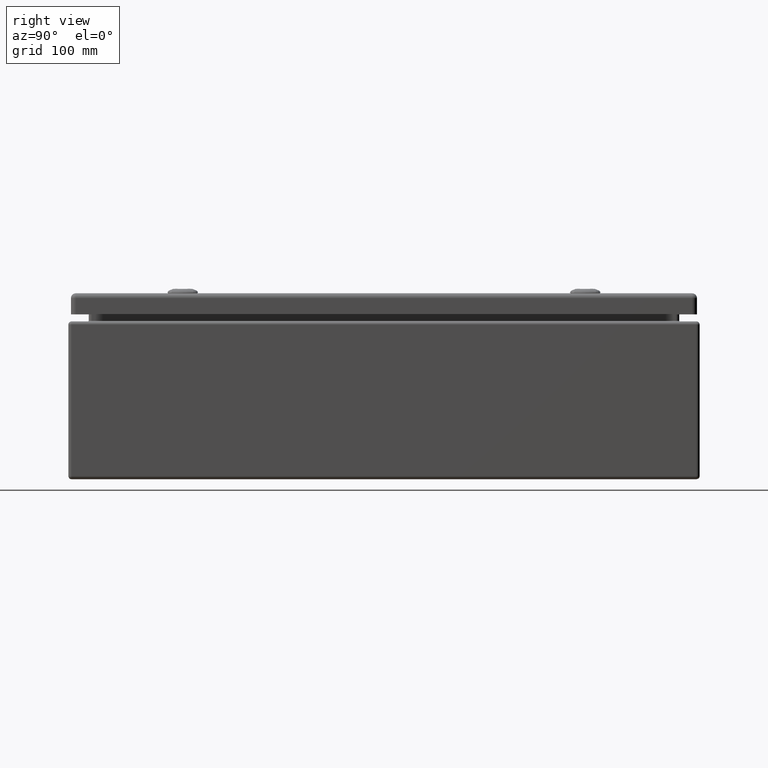
[diagram: clean part render]
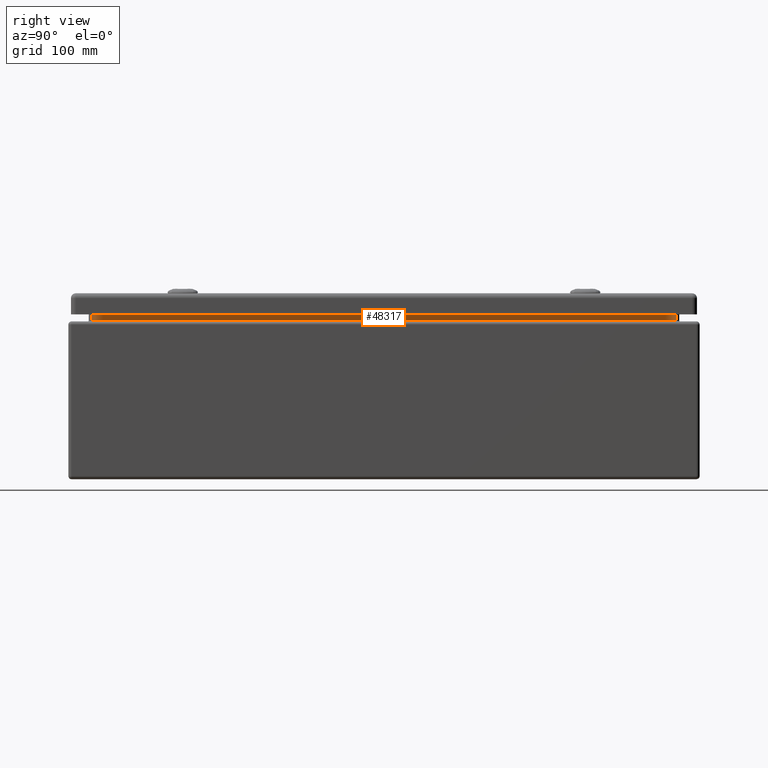
[diagram: same view with one face highlighted and labeled with its STEP entity id]
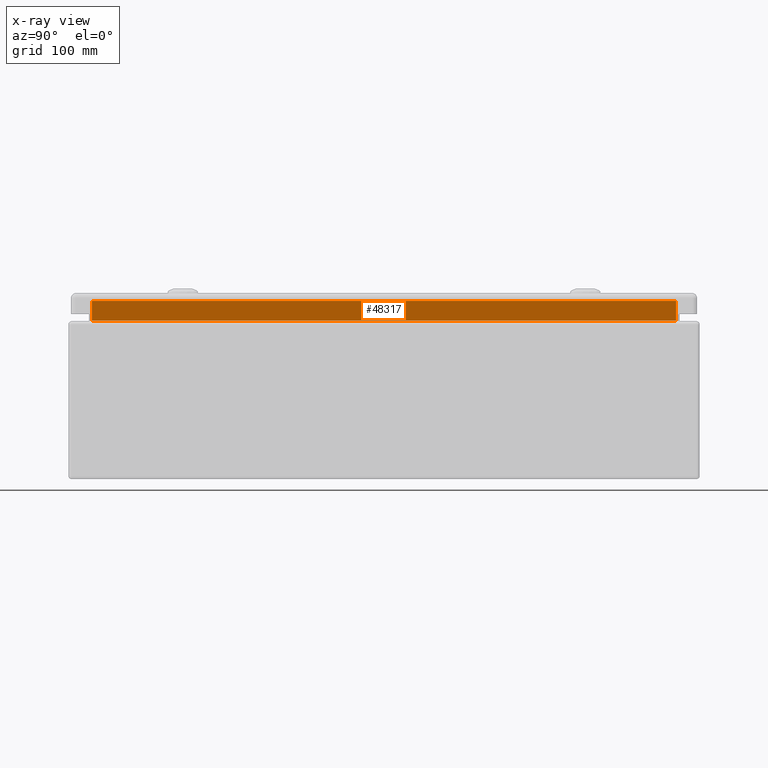
[diagram: x-ray of the same camera — body ghosted, the highlighted face saturated]
A machine part, right view. The second image highlights one B-rep face of the part: STEP entity #48317.
The next image is the same camera in x-ray: the body ghosted, the highlighted face saturated — about 0% of this face is hidden behind the body in this view.
In plain terms, the highlighted planar face has unit normal (-1, -0, -0).
Its self-contained STEP definition (entity closure, byte-faithful):
#4110=LINE('',#69063,#7935);
#4126=LINE('',#69115,#7951);
#4128=LINE('',#69118,#7953);
#4129=LINE('',#69119,#7954);
#7935=VECTOR('',#56617,0.393700787401575);
#7951=VECTOR('',#56673,0.393700787401575);
#7953=VECTOR('',#56677,0.393700787401575);
#7954=VECTOR('',#56678,0.393700787401575);
#12385=FACE_OUTER_BOUND('',#15313,.T.);
#15313=EDGE_LOOP('',(#32498,#32499,#32500,#32501));
#20160=VERTEX_POINT('',#69048);
#20164=VERTEX_POINT('',#69057);
#20166=VERTEX_POINT('',#69066);
#20171=VERTEX_POINT('',#69083);
#24920=EDGE_CURVE('',#20160,#20164,#4110,.T.);
#24949=EDGE_CURVE('',#20166,#20171,#4126,.T.);
#24951=EDGE_CURVE('',#20166,#20164,#4128,.T.);
#24952=EDGE_CURVE('',#20160,#20171,#4129,.T.);
#32498=ORIENTED_EDGE('',*,*,#24949,.F.);
#32499=ORIENTED_EDGE('',*,*,#24951,.T.);
#32500=ORIENTED_EDGE('',*,*,#24920,.F.);
#32501=ORIENTED_EDGE('',*,*,#24952,.T.);
#46902=PLANE('',#52150);
#48317=ADVANCED_FACE('',(#12385),#46902,.F.);
#52150=AXIS2_PLACEMENT_3D('',#69117,#56675,#56676);
#56617=DIRECTION('',(8.81870860163561E-15,-5.39208377136787E-15,-1.));
#56673=DIRECTION('',(-8.81870860163561E-15,-5.39208377136787E-15,1.));
#56675=DIRECTION('center_axis',(-1.,-7.42077912484162E-18,-8.81870860163561E-15));
#56676=DIRECTION('ref_axis',(-8.81870860163561E-15,7.40132151804919E-18,
1.));
#56677=DIRECTION('',(-7.42077912484265E-18,1.,1.17883767982698E-16));
#56678=DIRECTION('',(7.42077912484265E-18,-1.,-1.18313953740284E-16));
#69048=CARTESIAN_POINT('',(5.22385826745549,11.1028582677165,6.77325196889546));
#69057=CARTESIAN_POINT('',(5.2238582674555,11.1028582677165,6.03100000013054));
#69063=CARTESIAN_POINT('',(5.22385826745553,11.1028582674556,2.369782275608));
#69066=CARTESIAN_POINT('',(5.2238582674555,-11.1028582677165,6.03100000013053));
#69083=CARTESIAN_POINT('',(5.22385826745549,-11.1028582677165,6.77325196889546));
#69115=CARTESIAN_POINT('',(5.22385826745553,-11.1028582674556,2.369782275608));
#69117=CARTESIAN_POINT('Origin',(5.22385826745553,-1.16675964244517E-15,
2.369782275608));
#69118=CARTESIAN_POINT('',(5.2238582674555,5.56299212598425,6.03100000013054));
#69119=CARTESIAN_POINT('',(5.22385826745549,-5.56299212598425,6.77325196889546));